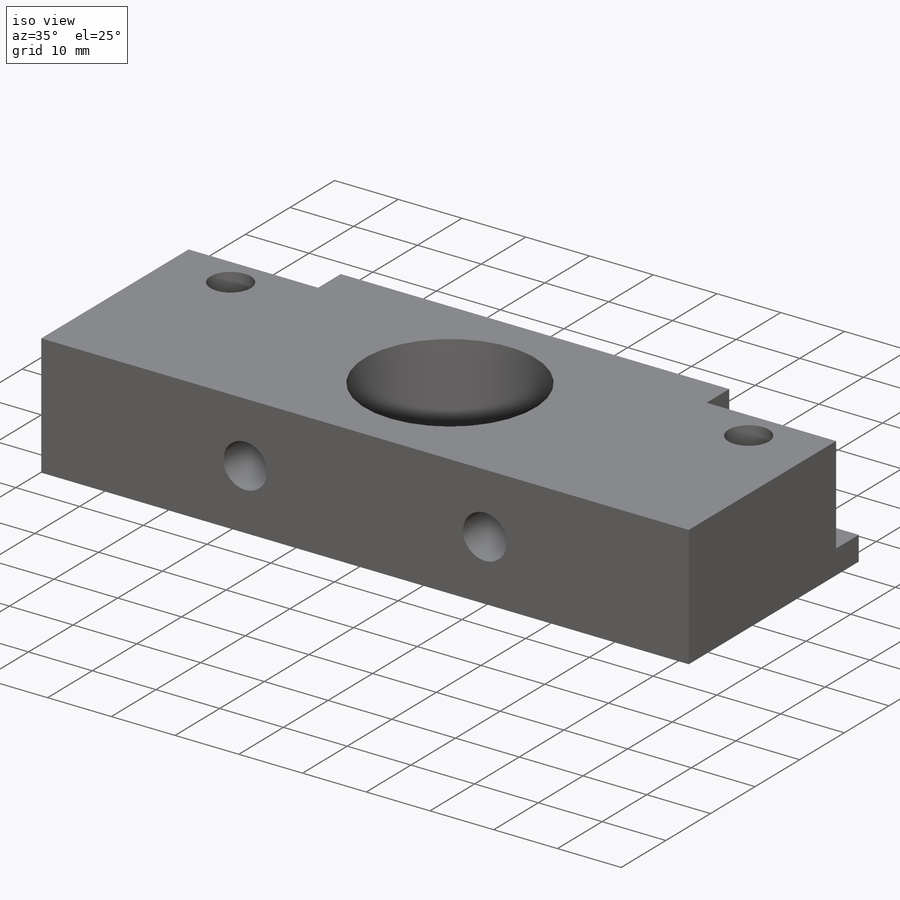
[diagram: iso view]
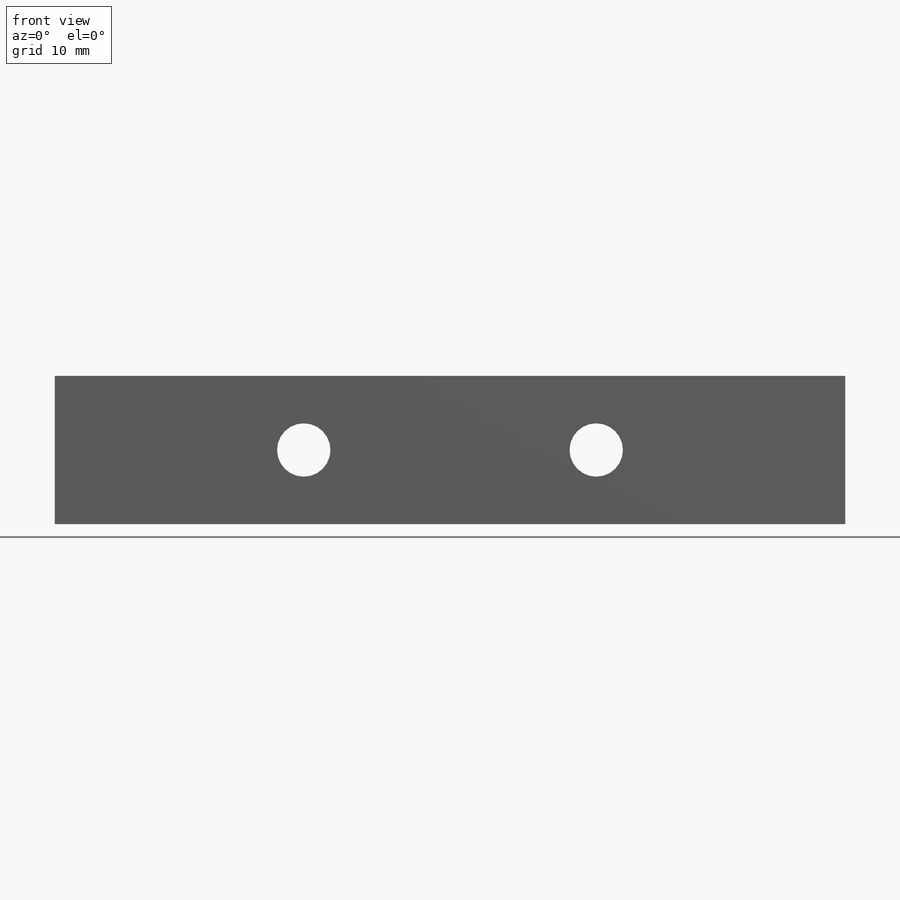
[diagram: front view]
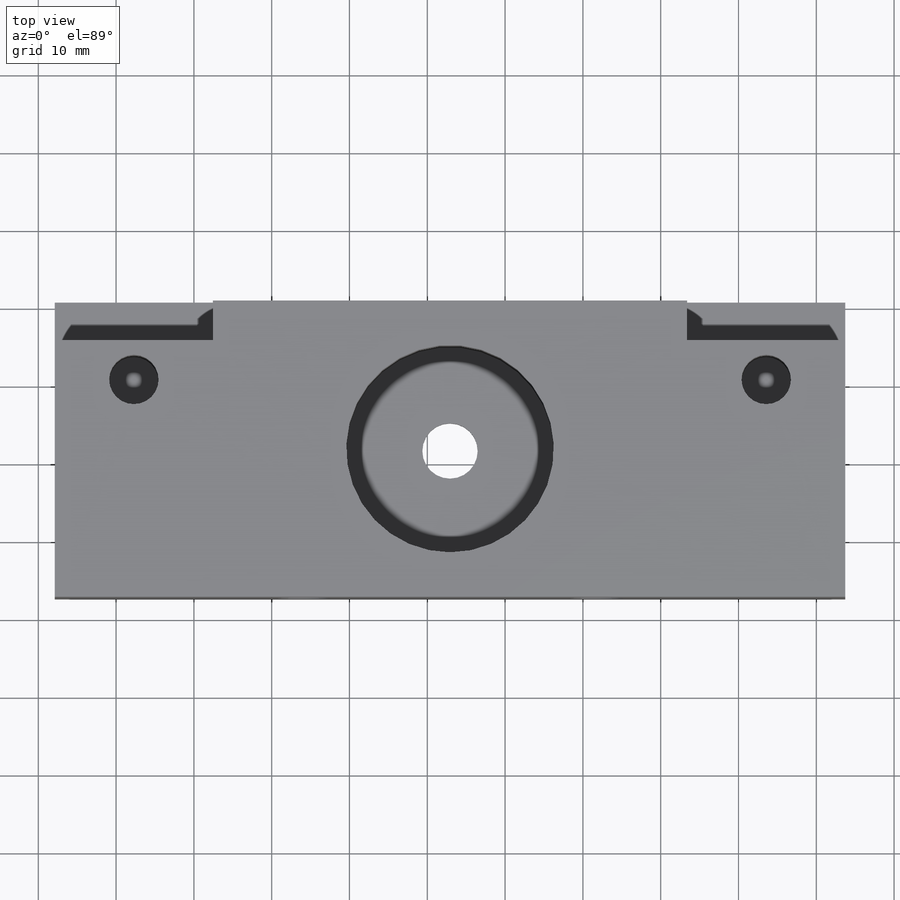
[diagram: top view]
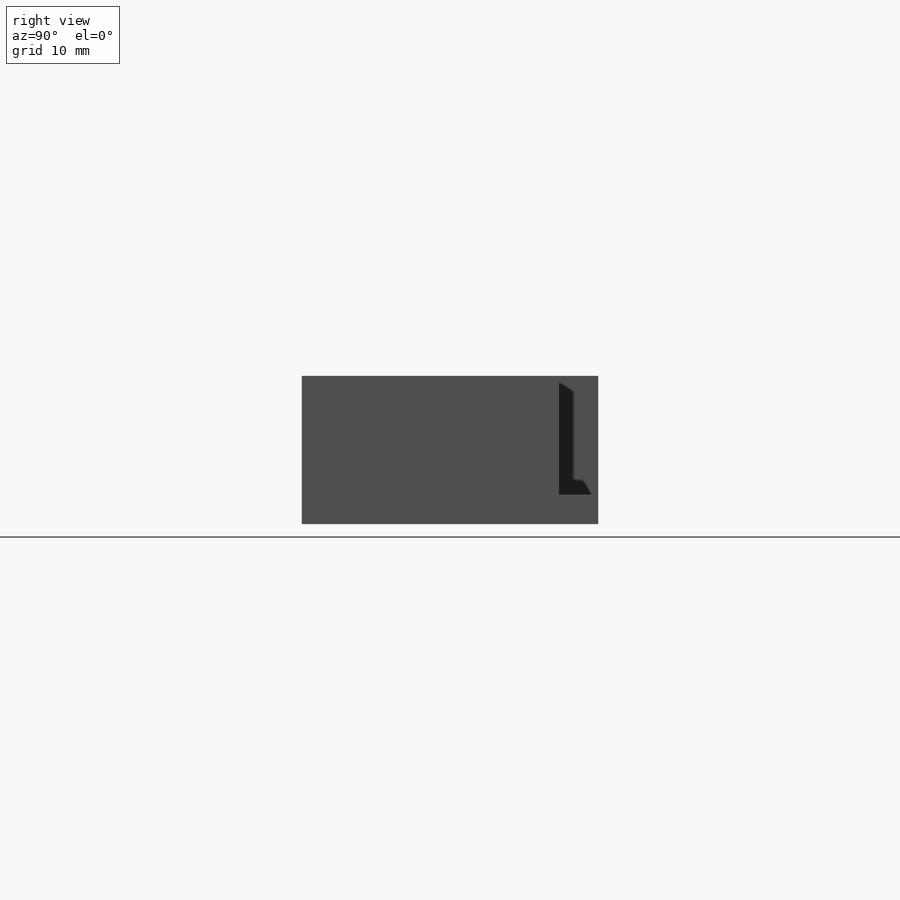
[diagram: right view]
SOLIDWORKS PART (.sldprt)
format: sldprt  version: not decoded by parser v0  size: 217,600 bytes
history: native  units: mm
features: sketch x6, cut_extrude x5, material x1, extrude x1 (+12 scaffold rows collapsed)
feature tree (25):
  scaffold x12  (default folders/planes/origin — collapsed)
  material  "Material <not specified>"
  sketch  "Sketch1"  dims[D1=101.6mm D2=38.1mm]
  extrude  "Boss-Extrude1"  Depth=19.05mm
  sketch  "Sketch2"  dims[c1.D3=~7.36133mm c1.D5=6.35mm c1.D6=6.35mm c1.D1=10.16mm c1.D2=10.16mm c2.D3=10.16mm c2.D4=10.16mm]
  cut_extrude  "Cut-Extrude1"  Depth=16.51mm
  sketch  "Sketch3"  dims[D5=6.858mm D6=6.858mm D1=37.592mm D2=32.004mm D3=9.525mm D4=9.525mm]
  cut_extrude  "Cut-Extrude2"  [1 undecoded]
  sketch  "Sketch4"  dims[D3=26.67mm D1=50.8mm D2=19.05mm]
  cut_extrude  "Cut-Extrude3"  Depth=16.51mm
  sketch  "Sketch5"  dims[D3=7.112mm D1=50.8mm D2=19.05mm]
  cut_extrude  "Cut-Extrude4"  [1 undecoded]
  sketch  "Sketch6"  dims[D5=6.604mm D1=20.32mm D2=20.32mm D3=5.08mm D4=5.08mm]
  cut_extrude  "Cut-Extrude5"  Depth=15.24mm
decode coverage: 10 of 12 modeling features carry decoded parameters
note: ~ marks probable driven/reference dimensions
note: 2 parameter values undecoded
note: suppression state not decoded; provenance and decode notes live in map.json
